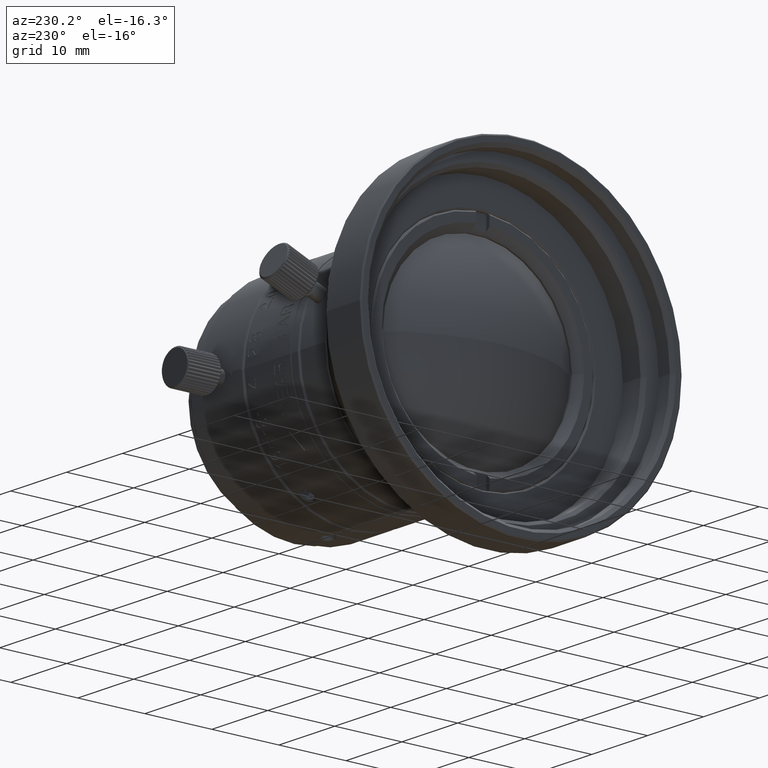
[diagram: clean part render]
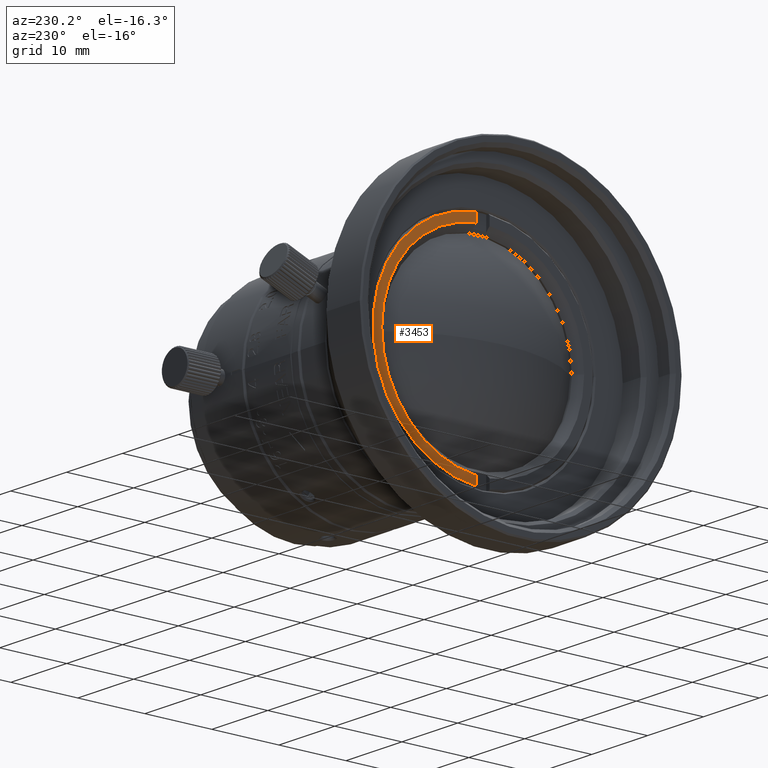
[diagram: same view with one face highlighted and labeled with its STEP entity id]
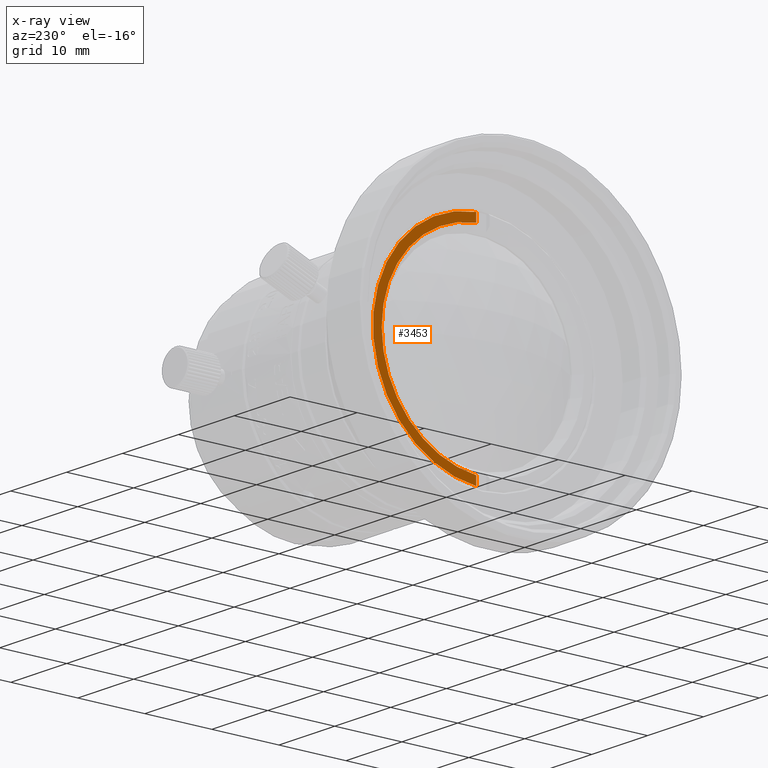
[diagram: x-ray of the same camera — body ghosted, the highlighted face saturated]
A machine part, auxiliary view. The second image highlights one B-rep face of the part: STEP entity #3453.
The next image is the same camera in x-ray: the body ghosted, the highlighted face saturated — about 0% of this face is hidden behind the body in this view.
In plain terms, the highlighted planar face has unit normal (1, 0, 0).
Its self-contained STEP definition (entity closure, byte-faithful):
#851 = DIRECTION ( 'NONE',  ( 0.000000000000000000, 1.000000000000000000, -2.596510203318999689E-11 ) ) ;
#3453 = ADVANCED_FACE ( 'NONE', ( #83267 ), #75944, .F. ) ;
#9250 = DIRECTION ( 'NONE',  ( 0.000000000000000000, 1.000000000000000000, 0.000000000000000000 ) ) ;
#12543 = VERTEX_POINT ( 'NONE', #95349 ) ;
#15873 = CARTESIAN_POINT ( 'NONE',  ( -12.52741224273000142, 1.000000000004000134, 16.36948380378000323 ) ) ;
#19581 = AXIS2_PLACEMENT_3D ( 'NONE', #45284, #84239, #9250 ) ;
#20442 = CIRCLE ( 'NONE', #32894, 15.09999999999999787 ) ;
#22534 = CIRCLE ( 'NONE', #75345, 15.10000000000000142 ) ;
#23184 = ORIENTED_EDGE ( 'NONE', *, *, #25342, .T. ) ;
#23417 = VERTEX_POINT ( 'NONE', #62043 ) ;
#24042 = ORIENTED_EDGE ( 'NONE', *, *, #70115, .T. ) ;
#25342 = EDGE_CURVE ( 'NONE', #12543, #34267, #22534, .T. ) ;
#28462 = DIRECTION ( 'NONE',  ( -5.064112387072999918E-11, 3.022567079370000065E-12, 1.000000000000000000 ) ) ;
#28718 = EDGE_CURVE ( 'NONE', #23417, #49258, #29972, .T. ) ;
#29005 = CARTESIAN_POINT ( 'NONE',  ( -12.52741224273000142, 1.000000000004000134, -16.36948380378000323 ) ) ;
#29972 = LINE ( 'NONE', #29005, #89207 ) ;
#32894 = AXIS2_PLACEMENT_3D ( 'NONE', #87401, #79608, #50358 ) ;
#34267 = VERTEX_POINT ( 'NONE', #39386 ) ;
#34459 = EDGE_CURVE ( 'NONE', #87342, #23417, #70037, .T. ) ;
#34818 = ORIENTED_EDGE ( 'NONE', *, *, #34459, .T. ) ;
#39386 = CARTESIAN_POINT ( 'NONE',  ( -12.52741224266000053, 1.000000000000000000, 15.06685103131999881 ) ) ;
#40002 = CARTESIAN_POINT ( 'NONE',  ( -12.52741224266000053, 0.9999999999991001642, -15.06685103131999881 ) ) ;
#40480 = AXIS2_PLACEMENT_3D ( 'NONE', #74353, #95355, #72893 ) ;
#45284 = CARTESIAN_POINT ( 'NONE',  ( -12.52741224266000053, 8.707591885243999741, 0.000000000000000000 ) ) ;
#48995 = ORIENTED_EDGE ( 'NONE', *, *, #28718, .T. ) ;
#49258 = VERTEX_POINT ( 'NONE', #40002 ) ;
#50358 = DIRECTION ( 'NONE',  ( 2.745688150718257883E-14, 0.06622516556291679901, -0.9978047040609521190 ) ) ;
#51192 = EDGE_CURVE ( 'NONE', #49258, #12543, #20442, .T. ) ;
#53423 = DIRECTION ( 'NONE',  ( 1.000000000000000000, -5.765410822796989767E-25, -2.220446049250000061E-14 ) ) ;
#57853 = CARTESIAN_POINT ( 'NONE',  ( -12.52741224266000053, 0.000000000000000000, 3.774758283726000253E-13 ) ) ;
#59453 = ORIENTED_EDGE ( 'NONE', *, *, #51192, .T. ) ;
#59664 = DIRECTION ( 'NONE',  ( 5.065339687037999397E-11, -3.816135827283999907E-12, 1.000000000000000000 ) ) ;
#62043 = CARTESIAN_POINT ( 'NONE',  ( -12.52741224273000142, 1.000000000004000134, -16.36948380378000323 ) ) ;
#65436 = LINE ( 'NONE', #95205, #96075 ) ;
#69005 = EDGE_LOOP ( 'NONE', ( #34818, #48995, #59453, #23184, #24042 ) ) ;
#70037 = CIRCLE ( 'NONE', #40480, 16.39999999992000213 ) ;
#70115 = EDGE_CURVE ( 'NONE', #34267, #87342, #65436, .T. ) ;
#72893 = DIRECTION ( 'NONE',  ( 3.133291390587538741E-12, 0.06097560975582239085, 0.9981392563239387394 ) ) ;
#74353 = CARTESIAN_POINT ( 'NONE',  ( -12.52741224318000057, 4.676259406364999884E-12, 0.000000000000000000 ) ) ;
#75345 = AXIS2_PLACEMENT_3D ( 'NONE', #57853, #53423, #851 ) ;
#75944 = PLANE ( 'NONE',  #19581 ) ;
#79608 = DIRECTION ( 'NONE',  ( 1.000000000000000000, 4.177301540124664367E-18, 2.747059223068205007E-14 ) ) ;
#83267 = FACE_OUTER_BOUND ( 'NONE', #69005, .T. ) ;
#84239 = DIRECTION ( 'NONE',  ( 1.000000000000000000, 0.000000000000000000, 0.000000000000000000 ) ) ;
#87342 = VERTEX_POINT ( 'NONE', #15873 ) ;
#87401 = CARTESIAN_POINT ( 'NONE',  ( -12.52741224266000053, 0.000000000000000000, -3.828048988907999689E-13 ) ) ;
#89207 = VECTOR ( 'NONE', #59664, 1000.000000000000000 ) ;
#95205 = CARTESIAN_POINT ( 'NONE',  ( -12.52741224266000053, 1.000000000001000089, 15.06685103131999881 ) ) ;
#95349 = CARTESIAN_POINT ( 'NONE',  ( -12.52741224266000053, 15.09999999999000053, -5.895354104903999591E-10 ) ) ;
#95355 = DIRECTION ( 'NONE',  ( -1.000000000000000000, 5.143865834302800634E-11, -3.189330403807435606E-15 ) ) ;
#96075 = VECTOR ( 'NONE', #28462, 1000.000000000000000 ) ;